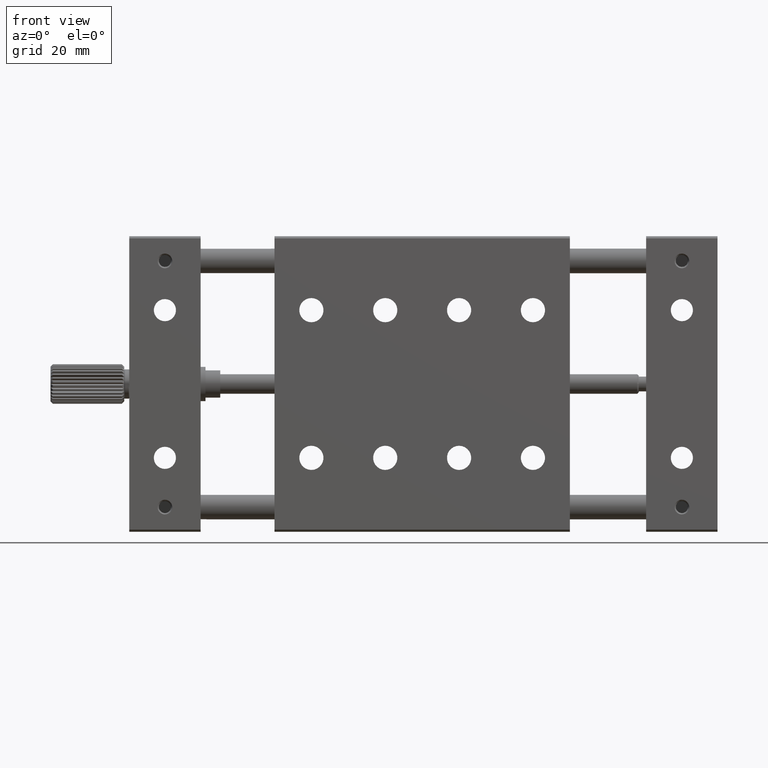
[diagram: clean part render]
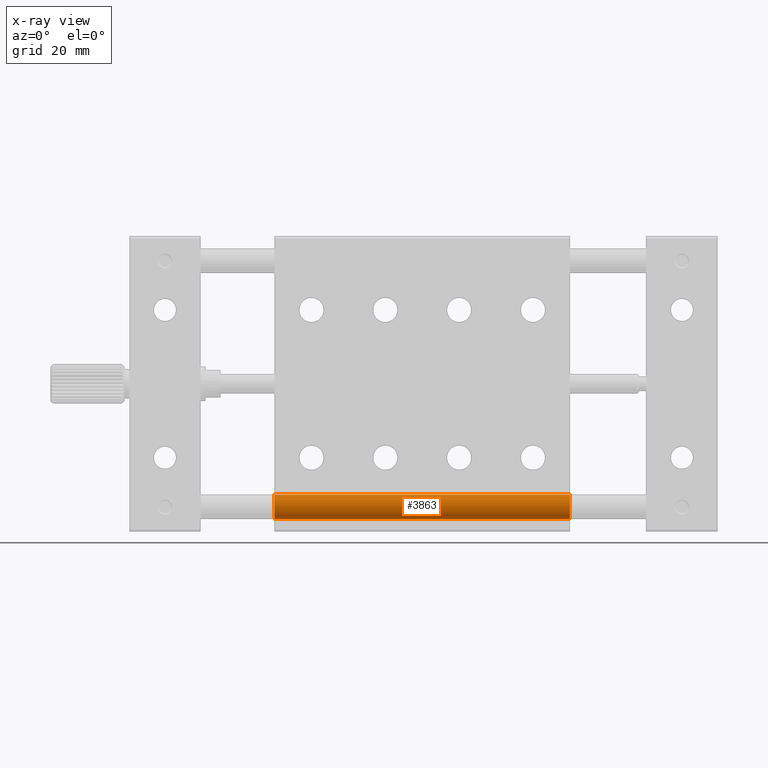
[diagram: x-ray — body ghosted, one internal face saturated and labeled with its STEP entity id]
A machine part, front view, then the same camera in x-ray: the body is ghosted and one INTERNAL B-rep face — a face not visible from any outside direction — is saturated and labeled: STEP entity #3863.
In plain terms, the highlighted cylindrical surface (bore or boss wall) has radius 2.5 mm, axis along (-1, 0, 0).
Its self-contained STEP definition (entity closure, byte-faithful):
#23 = CARTESIAN_POINT ( 'NONE',  ( 89.50000000000000000, 5.000000000000000888, -52.50000000000000000 ) ) ;
#232 = CARTESIAN_POINT ( 'NONE',  ( 29.50000000000000355, 5.000000000000000888, -52.50000000000000000 ) ) ;
#547 = DIRECTION ( 'NONE',  ( 0.000000000000000000, 0.000000000000000000, 1.000000000000000000 ) ) ;
#1353 = ORIENTED_EDGE ( 'NONE', *, *, #6400, .T. ) ;
#1884 = VERTEX_POINT ( 'NONE', #23 ) ;
#2096 = AXIS2_PLACEMENT_3D ( 'NONE', #2622, #3946, #547 ) ;
#2487 = EDGE_CURVE ( 'NONE', #1884, #1884, #8704, .T. ) ;
#2599 = DIRECTION ( 'NONE',  ( -1.000000000000000000, 0.000000000000000000, 0.000000000000000000 ) ) ;
#2622 = CARTESIAN_POINT ( 'NONE',  ( 29.50000000000000355, 5.000000000000000888, -55.00000000000000000 ) ) ;
#3652 = CIRCLE ( 'NONE', #8455, 2.500000000000002220 ) ;
#3722 = DIRECTION ( 'NONE',  ( 0.000000000000000000, 0.000000000000000000, 1.000000000000000000 ) ) ;
#3863 = ADVANCED_FACE ( 'NONE', ( #3894, #6604 ), #7304, .F. ) ;
#3894 = FACE_OUTER_BOUND ( 'NONE', #7273, .T. ) ;
#3946 = DIRECTION ( 'NONE',  ( -1.000000000000000000, 0.000000000000000000, 0.000000000000000000 ) ) ;
#4628 = DIRECTION ( 'NONE',  ( 0.000000000000000000, 0.000000000000000000, 1.000000000000000000 ) ) ;
#4879 = AXIS2_PLACEMENT_3D ( 'NONE', #5847, #7047, #3722 ) ;
#5584 = EDGE_LOOP ( 'NONE', ( #1353 ) ) ;
#5847 = CARTESIAN_POINT ( 'NONE',  ( 89.50000000000000000, 5.000000000000000888, -55.00000000000000000 ) ) ;
#6295 = VERTEX_POINT ( 'NONE', #232 ) ;
#6400 = EDGE_CURVE ( 'NONE', #6295, #6295, #3652, .T. ) ;
#6604 = FACE_OUTER_BOUND ( 'NONE', #5584, .T. ) ;
#7047 = DIRECTION ( 'NONE',  ( -1.000000000000000000, 0.000000000000000000, 0.000000000000000000 ) ) ;
#7273 = EDGE_LOOP ( 'NONE', ( #7582 ) ) ;
#7304 = CYLINDRICAL_SURFACE ( 'NONE', #2096, 2.500000000000002220 ) ;
#7369 = CARTESIAN_POINT ( 'NONE',  ( 29.50000000000000355, 5.000000000000000888, -55.00000000000000000 ) ) ;
#7582 = ORIENTED_EDGE ( 'NONE', *, *, #2487, .F. ) ;
#8455 = AXIS2_PLACEMENT_3D ( 'NONE', #7369, #2599, #4628 ) ;
#8704 = CIRCLE ( 'NONE', #4879, 2.500000000000002220 ) ;